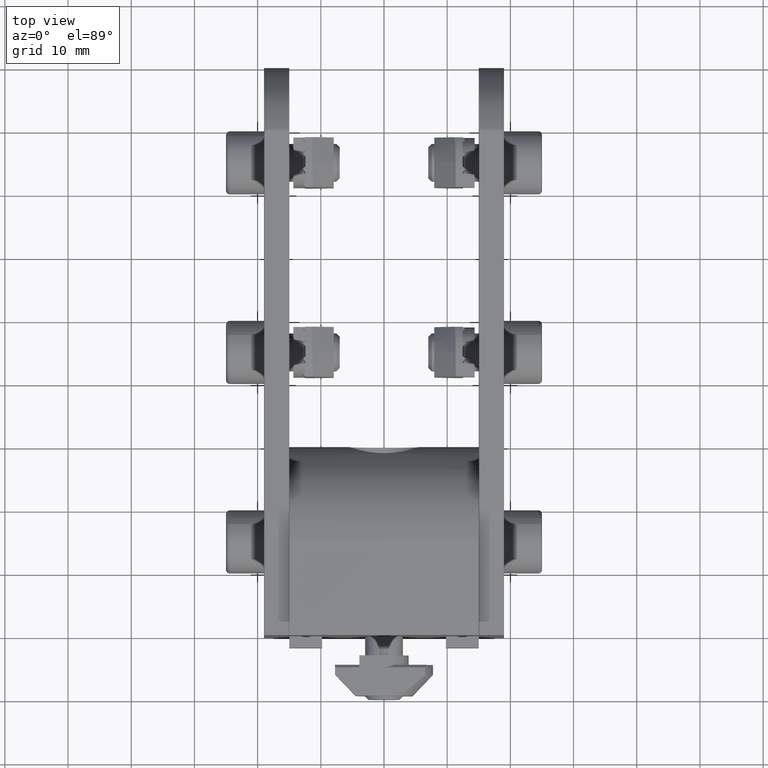
[diagram: clean part render]
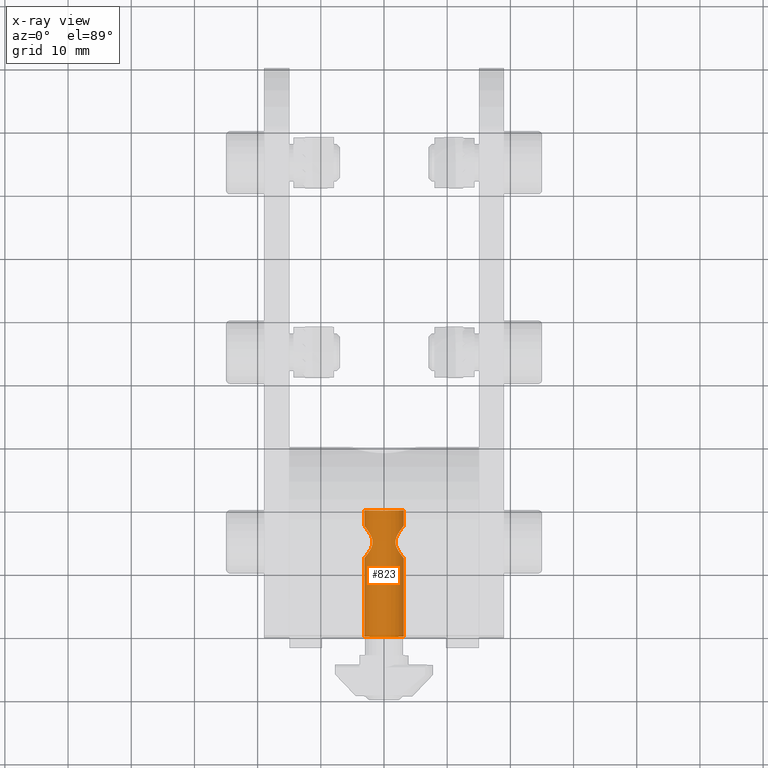
[diagram: x-ray — body ghosted, one internal face saturated and labeled with its STEP entity id]
A machine part, top view, then the same camera in x-ray: the body is ghosted and one INTERNAL B-rep face — a face not visible from any outside direction — is saturated and labeled: STEP entity #823.
In plain terms, the highlighted cylindrical surface (edge-blend (fillet) strip) has radius 3.125 mm, axis along (-0, -1, 0).
Its self-contained STEP definition (entity closure, byte-faithful):
#25 = EDGE_CURVE ( 'NONE', #4435, #560, #1919, .T. ) ;
#51 = CARTESIAN_POINT ( 'NONE',  ( -3.469446951953614189E-15, 22.50000000000000000, 15.00000000000000000 ) ) ;
#109 = ORIENTED_EDGE ( 'NONE', *, *, #4290, .F. ) ;
#135 = CARTESIAN_POINT ( 'NONE',  ( 2.460299840727588450, 8.192317774471510106, 13.07230138548744236 ) ) ;
#203 = CARTESIAN_POINT ( 'NONE',  ( 2.460428087672915876, 6.808272468155907475, 13.07247088192639772 ) ) ;
#240 = CARTESIAN_POINT ( 'NONE',  ( 1.710533131412079078, 9.397777907945675580, 12.38117625666117227 ) ) ;
#245 = CARTESIAN_POINT ( 'NONE',  ( 2.549999999999994049, 7.679537608135245996, 16.80641218995001651 ) ) ;
#273 = CARTESIAN_POINT ( 'NONE',  ( 1.710738595343251234, 9.397607185313235689, 17.61869668749031703 ) ) ;
#310 = CARTESIAN_POINT ( 'NONE',  ( 2.409554327393396811, 6.649852960725987749, 16.99220742544802221 ) ) ;
#358 = DIRECTION ( 'NONE',  ( -0.000000000000000000, -1.000000000000000000, -0.000000000000000000 ) ) ;
#369 = CARTESIAN_POINT ( 'NONE',  ( 0.8635272850872629524, 9.905366927923276776, 11.99214638787498544 ) ) ;
#378 = EDGE_CURVE ( 'NONE', #4866, #560, #445, .T. ) ;
#390 = ORIENTED_EDGE ( 'NONE', *, *, #1225, .F. ) ;
#416 = LINE ( 'NONE', #5188, #3029 ) ;
#445 = CIRCLE ( 'NONE', #1936, 3.124999999999999112 ) ;
#474 = VECTOR ( 'NONE', #992, 1000.000000000000000 ) ;
#549 = AXIS2_PLACEMENT_3D ( 'NONE', #1612, #3356, #2442 ) ;
#555 = CARTESIAN_POINT ( 'NONE',  ( 1.710738595343250124, 5.602392814686768752, 12.38130331250967764 ) ) ;
#560 = VERTEX_POINT ( 'NONE', #5084 ) ;
#568 = CARTESIAN_POINT ( 'NONE',  ( 2.531223467271251693, 7.853958988964380161, 13.16642289133695520 ) ) ;
#598 = CARTESIAN_POINT ( 'NONE',  ( 2.030372927975903075, 9.050756590866312123, 12.62146815501216679 ) ) ;
#675 = CARTESIAN_POINT ( 'NONE',  ( 2.042961531674632347, 9.058514185208251135, 17.38038415193362596 ) ) ;
#823 = ADVANCED_FACE ( 'NONE', ( #5648 ), #3554, .F. ) ;
#853 = CARTESIAN_POINT ( 'NONE',  ( -3.086751197555156462E-15, 4.950000000000001066, 18.12500000000000000 ) ) ;
#945 = AXIS2_PLACEMENT_3D ( 'NONE', #51, #5309, #1810 ) ;
#955 = B_SPLINE_CURVE_WITH_KNOTS ( 'NONE', 3,
 ( #1189, #1005, #568, #135, #3217, #4968, #4533, #598, #4171, #240, #3748, #3875, #1212, #369, #5629, #2584, #1757, #3904 ),
 .UNSPECIFIED., .F., .F.,
 ( 4, 2, 2, 2, 2, 2, 2, 2, 4 ),
 ( 0.000000000000000000, 0.0005311377767288515865, 0.001062275553457703173, 0.001593413330186554868, 0.002124551106915406346, 0.002655688883644257824, 0.003186826660373109736, 0.003717964437101961214, 0.004249102213830812692 ),
 .UNSPECIFIED. ) ;
#988 = CARTESIAN_POINT ( 'NONE',  ( 2.220339003297622238, 6.205441830909313339, 12.79272972362842076 ) ) ;
#992 = DIRECTION ( 'NONE',  ( -0.000000000000000000, -1.000000000000000000, -0.000000000000000000 ) ) ;
#1005 = CARTESIAN_POINT ( 'NONE',  ( 2.549999999999994937, 7.680014705681784903, 13.19358781004998704 ) ) ;
#1057 = CARTESIAN_POINT ( 'NONE',  ( 0.8627774669129237850, 9.905634755943225400, 18.00806832566048854 ) ) ;
#1077 = CARTESIAN_POINT ( 'NONE',  ( 2.042961531674631015, 5.941485814791755082, 12.61961584806637049 ) ) ;
#1115 = VERTEX_POINT ( 'NONE', #5474 ) ;
#1166 = CARTESIAN_POINT ( 'NONE',  ( 2.549999999999994493, 7.500000000000001776, 16.80641218995001296 ) ) ;
#1189 = CARTESIAN_POINT ( 'NONE',  ( 2.549999999999994493, 7.500000000000001776, 13.19358781004998526 ) ) ;
#1204 = CARTESIAN_POINT ( 'NONE',  ( 0.3565481274170828607, 4.969011546150820635, 18.10943374770169001 ) ) ;
#1212 = CARTESIAN_POINT ( 'NONE',  ( 1.175543582449678714, 9.769265677658438563, 12.09983448578791787 ) ) ;
#1225 = EDGE_CURVE ( 'NONE', #3126, #3754, #5450, .T. ) ;
#1235 = CARTESIAN_POINT ( 'NONE',  ( 0.1767325160489950364, 4.950000000000001954, 18.12500000000000000 ) ) ;
#1240 = B_SPLINE_CURVE_WITH_KNOTS ( 'NONE', 3,
 ( #3295, #3345, #1929, #4209, #1057, #1954, #5423, #1494, #273, #675, #4147, #2832, #3700, #5443, #245, #1166 ),
 .UNSPECIFIED., .F., .F.,
 ( 4, 2, 2, 2, 2, 2, 2, 4 ),
 ( 0.01273917318302851022, 0.01326890327181769018, 0.01379863336060687014, 0.01432836344939605010, 0.01485809353818523006, 0.01591755371576359171, 0.01644728380455277167, 0.01697701389334195163 ),
 .UNSPECIFIED. ) ;
#1244 = CARTESIAN_POINT ( 'NONE',  ( -3.469446951953614189E-15, 22.50000000000000000, 11.87500000000000000 ) ) ;
#1289 = B_SPLINE_CURVE_WITH_KNOTS ( 'NONE', 3,
 ( #1721, #1319, #3819, #5569, #310, #3385, #5225, #1292, #3843, #1666, #3042, #3410, #5143, #4791, #5164, #1204, #1235, #853 ),
 .UNSPECIFIED., .F., .F.,
 ( 4, 2, 2, 2, 2, 2, 2, 2, 4 ),
 ( 0.000000000000000000, 0.0005311377767288516950, 0.001062275553457703390, 0.001593413330186555085, 0.002124551106915406780, 0.002655688883644258258, 0.003186826660373110170, 0.003717964437101962082, 0.004249102213830813560 ),
 .UNSPECIFIED. ) ;
#1292 = CARTESIAN_POINT ( 'NONE',  ( 2.030372927975902186, 5.949243409133691429, 17.37853184498783321 ) ) ;
#1319 = CARTESIAN_POINT ( 'NONE',  ( 2.549999999999994937, 7.319985294318219538, 16.80641218995000941 ) ) ;
#1494 = CARTESIAN_POINT ( 'NONE',  ( 1.587495662839331301, 9.502260313193330532, 17.69601106486905451 ) ) ;
#1508 = CARTESIAN_POINT ( 'NONE',  ( 0.8627774669129235630, 5.094365244056778153, 11.99193167433950435 ) ) ;
#1537 = CARTESIAN_POINT ( 'NONE',  ( 1.319014304549096295, 5.311532475516806961, 12.16295586819222407 ) ) ;
#1612 = CARTESIAN_POINT ( 'NONE',  ( -3.469446951953614189E-15, 12.49999999999999822, 15.00000000000000000 ) ) ;
#1666 = CARTESIAN_POINT ( 'NONE',  ( 1.710533131412079300, 5.602222092054329750, 17.61882374333882595 ) ) ;
#1674 = CARTESIAN_POINT ( 'NONE',  ( -3.086744827220066456E-15, 22.50000000000000000, 18.12500000000000000 ) ) ;
#1721 = CARTESIAN_POINT ( 'NONE',  ( 2.549999999999994493, 7.500000000000001776, 16.80641218995001296 ) ) ;
#1738 = EDGE_CURVE ( 'NONE', #3754, #2501, #955, .T. ) ;
#1757 = CARTESIAN_POINT ( 'NONE',  ( 0.1767325160489950642, 10.05000000000000071, 11.87500000000000178 ) ) ;
#1810 = DIRECTION ( 'NONE',  ( 0.000000000000000000, 0.000000000000000000, -1.000000000000000000 ) ) ;
#1844 = ORIENTED_EDGE ( 'NONE', *, *, #4222, .T. ) ;
#1873 = ORIENTED_EDGE ( 'NONE', *, *, #25, .F. ) ;
#1919 = LINE ( 'NONE', #5386, #474 ) ;
#1929 = CARTESIAN_POINT ( 'NONE',  ( 0.3555884707372732878, 10.03113792344570498, 18.10955544962730102 ) ) ;
#1936 = AXIS2_PLACEMENT_3D ( 'NONE', #2789, #1940, #4132 ) ;
#1937 = CIRCLE ( 'NONE', #549, 3.124999999999999112 ) ;
#1940 = DIRECTION ( 'NONE',  ( 0.000000000000000000, -1.000000000000000000, 0.000000000000000000 ) ) ;
#1954 = CARTESIAN_POINT ( 'NONE',  ( 1.174805325791875132, 9.769646664770915478, 17.90046417935917233 ) ) ;
#2052 = LINE ( 'NONE', #1244, #3023 ) ;
#2089 = CARTESIAN_POINT ( 'NONE',  ( -3.086857380391322646E-15, 10.05000000000000249, 18.12500000000000000 ) ) ;
#2176 = EDGE_CURVE ( 'NONE', #3653, #4435, #1289, .T. ) ;
#2306 = CARTESIAN_POINT ( 'NONE',  ( 2.531122118826033329, 7.145579102604631139, 13.16628909169929074 ) ) ;
#2400 = CARTESIAN_POINT ( 'NONE',  ( 2.549999999999994493, 7.500000000000001776, 16.80641218995001296 ) ) ;
#2414 = CARTESIAN_POINT ( 'NONE',  ( 0.3555884707372724551, 4.968862076554302121, 11.89044455037269543 ) ) ;
#2442 = DIRECTION ( 'NONE',  ( 0.000000000000000000, 0.000000000000000000, 1.000000000000000000 ) ) ;
#2471 = CARTESIAN_POINT ( 'NONE',  ( -3.086751197555156462E-15, 4.950000000000001066, 18.12500000000000000 ) ) ;
#2501 = VERTEX_POINT ( 'NONE', #3946 ) ;
#2584 = CARTESIAN_POINT ( 'NONE',  ( 0.3565481274170834713, 10.03098845384918292, 11.89056625229831354 ) ) ;
#2681 = CARTESIAN_POINT ( 'NONE',  ( -3.469446951953614189E-15, 12.49999999999999822, 11.87500000000000000 ) ) ;
#2789 = CARTESIAN_POINT ( 'NONE',  ( -3.469446951953614189E-15, -7.500000000000000000, 15.00000000000000000 ) ) ;
#2832 = CARTESIAN_POINT ( 'NONE',  ( 2.409171205783722236, 8.351008599782410613, 16.99263636719099679 ) ) ;
#2850 = CARTESIAN_POINT ( 'NONE',  ( 2.549999999999994049, 7.320462391864760221, 13.19358781004998704 ) ) ;
#3023 = VECTOR ( 'NONE', #3393, 1000.000000000000000 ) ;
#3029 = VECTOR ( 'NONE', #358, 1000.000000000000000 ) ;
#3042 = CARTESIAN_POINT ( 'NONE',  ( 1.586553429908633017, 5.497056593715464956, 17.69652533535530736 ) ) ;
#3126 = VERTEX_POINT ( 'NONE', #5284 ) ;
#3138 = ORIENTED_EDGE ( 'NONE', *, *, #4479, .F. ) ;
#3217 = CARTESIAN_POINT ( 'NONE',  ( 2.409554327393397699, 8.350147039274014915, 13.00779257455197779 ) ) ;
#3246 = CARTESIAN_POINT ( 'NONE',  ( -3.469446951953614189E-15, -7.500000000000000000, 11.87500000000000000 ) ) ;
#3254 = CARTESIAN_POINT ( 'NONE',  ( 1.587495662839331079, 5.497739686806675685, 12.30398893513095082 ) ) ;
#3295 = CARTESIAN_POINT ( 'NONE',  ( -3.086857380391322646E-15, 10.05000000000000249, 18.12500000000000000 ) ) ;
#3326 = ORIENTED_EDGE ( 'NONE', *, *, #4665, .T. ) ;
#3345 = CARTESIAN_POINT ( 'NONE',  ( 0.1763574262506394652, 10.05000000000000249, 18.12499999999999645 ) ) ;
#3356 = DIRECTION ( 'NONE',  ( 0.000000000000000000, -1.000000000000000000, -0.000000000000000000 ) ) ;
#3366 = LINE ( 'NONE', #1674, #4304 ) ;
#3385 = CARTESIAN_POINT ( 'NONE',  ( 2.282714364904031790, 6.351994262511118983, 17.13636551435639532 ) ) ;
#3393 = DIRECTION ( 'NONE',  ( -0.000000000000000000, -1.000000000000000000, -0.000000000000000000 ) ) ;
#3410 = CARTESIAN_POINT ( 'NONE',  ( 1.319328827033332319, 5.311780285050790695, 17.83685955174498261 ) ) ;
#3478 = ORIENTED_EDGE ( 'NONE', *, *, #1738, .F. ) ;
#3547 = ORIENTED_EDGE ( 'NONE', *, *, #378, .T. ) ;
#3554 = CYLINDRICAL_SURFACE ( 'NONE', #945, 3.124999999999999112 ) ;
#3653 = VERTEX_POINT ( 'NONE', #2400 ) ;
#3700 = CARTESIAN_POINT ( 'NONE',  ( 2.460428087672916764, 8.191727531844092525, 16.92752911807360050 ) ) ;
#3718 = CARTESIAN_POINT ( 'NONE',  ( 2.549999999999994493, 7.500000000000001776, 13.19358781004998526 ) ) ;
#3742 = CARTESIAN_POINT ( 'NONE',  ( 0.1763574262506388546, 4.950000000000001066, 11.87499999999999822 ) ) ;
#3748 = CARTESIAN_POINT ( 'NONE',  ( 1.586553429908633905, 9.502943406284536820, 12.30347466464469441 ) ) ;
#3754 = VERTEX_POINT ( 'NONE', #5023 ) ;
#3761 = EDGE_CURVE ( 'NONE', #5138, #3653, #1240, .T. ) ;
#3819 = CARTESIAN_POINT ( 'NONE',  ( 2.531223467271251693, 7.146041011035626944, 16.83357710866304657 ) ) ;
#3843 = CARTESIAN_POINT ( 'NONE',  ( 1.931810679774740525, 5.827997584016905819, 17.46013594946333569 ) ) ;
#3874 = DIRECTION ( 'NONE',  ( -0.000000000000000000, -1.000000000000000000, -0.000000000000000000 ) ) ;
#3875 = CARTESIAN_POINT ( 'NONE',  ( 1.319328827033332541, 9.688219714949214634, 12.16314044825501917 ) ) ;
#3904 = CARTESIAN_POINT ( 'NONE',  ( -3.469453322295724662E-15, 10.05000000000000249, 11.87500000000000000 ) ) ;
#3946 = CARTESIAN_POINT ( 'NONE',  ( -3.469453322295724662E-15, 10.05000000000000249, 11.87500000000000000 ) ) ;
#3969 = VERTEX_POINT ( 'NONE', #2681 ) ;
#4113 = CARTESIAN_POINT ( 'NONE',  ( 1.174805325791874910, 5.230353335229084522, 12.09953582064082589 ) ) ;
#4115 = EDGE_LOOP ( 'NONE', ( #109, #3138, #3326, #3478, #390, #1844, #3547, #1873, #4252, #5093 ) ) ;
#4132 = DIRECTION ( 'NONE',  ( 0.000000000000000000, 0.000000000000000000, -1.000000000000000000 ) ) ;
#4136 = CARTESIAN_POINT ( 'NONE',  ( 0.6979130176227541504, 5.041134455107604495, 11.94898448469024643 ) ) ;
#4147 = CARTESIAN_POINT ( 'NONE',  ( 2.220339003297622238, 8.794558169090690214, 17.20727027637157747 ) ) ;
#4171 = CARTESIAN_POINT ( 'NONE',  ( 1.931810679774740525, 9.172002415983101287, 12.53986405053666786 ) ) ;
#4209 = CARTESIAN_POINT ( 'NONE',  ( 0.6979130176227553717, 9.958865544892397281, 18.05101551530975357 ) ) ;
#4222 = EDGE_CURVE ( 'NONE', #3126, #4866, #2052, .T. ) ;
#4252 = ORIENTED_EDGE ( 'NONE', *, *, #2176, .F. ) ;
#4290 = EDGE_CURVE ( 'NONE', #1115, #5138, #3366, .T. ) ;
#4304 = VECTOR ( 'NONE', #3874, 1000.000000000000000 ) ;
#4435 = VERTEX_POINT ( 'NONE', #2471 ) ;
#4479 = EDGE_CURVE ( 'NONE', #3969, #1115, #1937, .T. ) ;
#4533 = CARTESIAN_POINT ( 'NONE',  ( 2.205629348451981553, 8.789363954832007053, 12.78301395098527138 ) ) ;
#4665 = EDGE_CURVE ( 'NONE', #3969, #2501, #416, .T. ) ;
#4791 = CARTESIAN_POINT ( 'NONE',  ( 0.8635272850872630634, 5.094633072076725000, 18.00785361212501101 ) ) ;
#4866 = VERTEX_POINT ( 'NONE', #3246 ) ;
#4952 = CARTESIAN_POINT ( 'NONE',  ( 2.409171205783721348, 6.648991400217592052, 13.00736363280900498 ) ) ;
#4968 = CARTESIAN_POINT ( 'NONE',  ( 2.282714364904032678, 8.648005737488883682, 12.86363448564360645 ) ) ;
#5023 = CARTESIAN_POINT ( 'NONE',  ( 2.549999999999994493, 7.500000000000001776, 13.19358781004998526 ) ) ;
#5084 = CARTESIAN_POINT ( 'NONE',  ( -3.086744827220066456E-15, -7.500000000000000000, 18.12500000000000000 ) ) ;
#5093 = ORIENTED_EDGE ( 'NONE', *, *, #3761, .F. ) ;
#5138 = VERTEX_POINT ( 'NONE', #2089 ) ;
#5143 = CARTESIAN_POINT ( 'NONE',  ( 1.175543582449678492, 5.230734322341561437, 17.90016551421208035 ) ) ;
#5164 = CARTESIAN_POINT ( 'NONE',  ( 0.6984413196449107408, 5.041299358666215369, 18.05088258074994556 ) ) ;
#5188 = CARTESIAN_POINT ( 'NONE',  ( -3.469446951953614189E-15, 22.50000000000000000, 11.87500000000000000 ) ) ;
#5225 = CARTESIAN_POINT ( 'NONE',  ( 2.205629348451980665, 6.210636045167996500, 17.21698604901472862 ) ) ;
#5237 = CARTESIAN_POINT ( 'NONE',  ( -3.469559505037227538E-15, 4.950000000000001066, 11.87500000000000000 ) ) ;
#5284 = CARTESIAN_POINT ( 'NONE',  ( -3.469559505037227538E-15, 4.950000000000001066, 11.87500000000000000 ) ) ;
#5309 = DIRECTION ( 'NONE',  ( -0.000000000000000000, -1.000000000000000000, -0.000000000000000000 ) ) ;
#5386 = CARTESIAN_POINT ( 'NONE',  ( -3.086744827220066456E-15, 22.50000000000000000, 18.12500000000000000 ) ) ;
#5423 = CARTESIAN_POINT ( 'NONE',  ( 1.319014304549097627, 9.688467524483192150, 17.83704413180776527 ) ) ;
#5443 = CARTESIAN_POINT ( 'NONE',  ( 2.531122118826032885, 7.854420897395367085, 16.83371090830070216 ) ) ;
#5450 = B_SPLINE_CURVE_WITH_KNOTS ( 'NONE', 3,
 ( #5237, #3742, #2414, #4136, #1508, #4113, #1537, #3254, #555, #1077, #988, #4952, #203, #2306, #2850, #3718 ),
 .UNSPECIFIED., .F., .F.,
 ( 4, 2, 2, 2, 2, 2, 2, 4 ),
 ( 0.01273917318302850848, 0.01326890327181769018, 0.01379863336060687014, 0.01432836344939605183, 0.01485809353818523179, 0.01591755371576359171, 0.01644728380455277167, 0.01697701389334195163 ),
 .UNSPECIFIED. ) ;
#5474 = CARTESIAN_POINT ( 'NONE',  ( -3.086744827220066456E-15, 12.49999999999999822, 18.12500000000000000 ) ) ;
#5569 = CARTESIAN_POINT ( 'NONE',  ( 2.460299840727588006, 6.807682225528491671, 16.92769861451255764 ) ) ;
#5629 = CARTESIAN_POINT ( 'NONE',  ( 0.6984413196449112959, 9.958700641333786407, 11.94911741925005266 ) ) ;
#5648 = FACE_OUTER_BOUND ( 'NONE', #4115, .T. ) ;